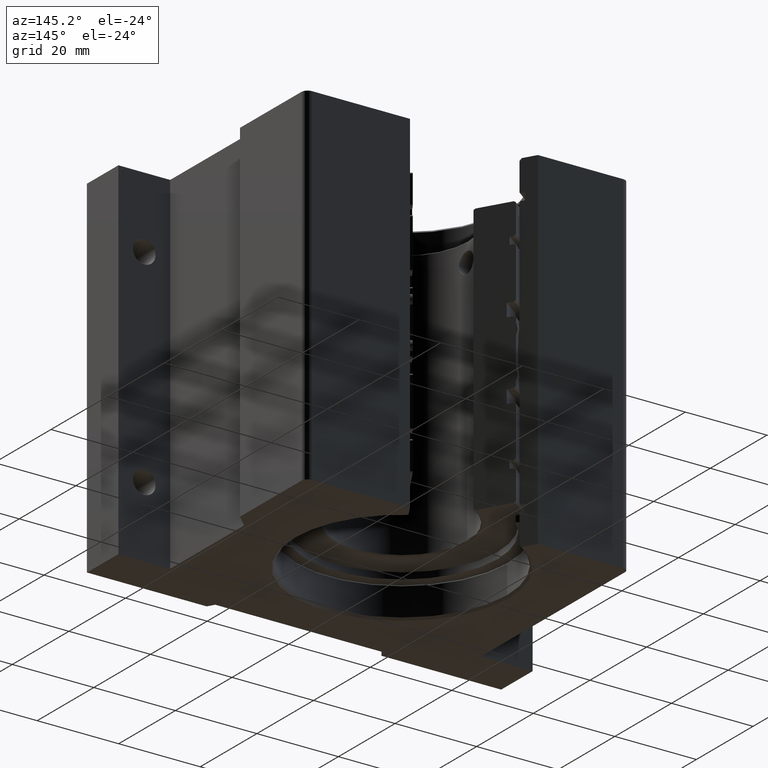
[diagram: clean part render]
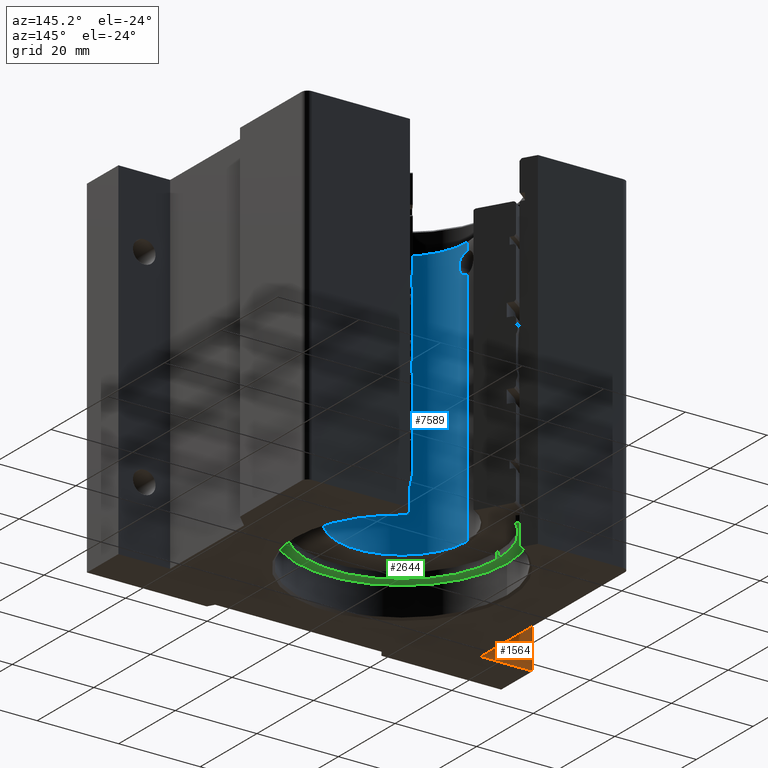
[diagram: same view with three faces highlighted in distinct colors, each labeled with its STEP entity id]
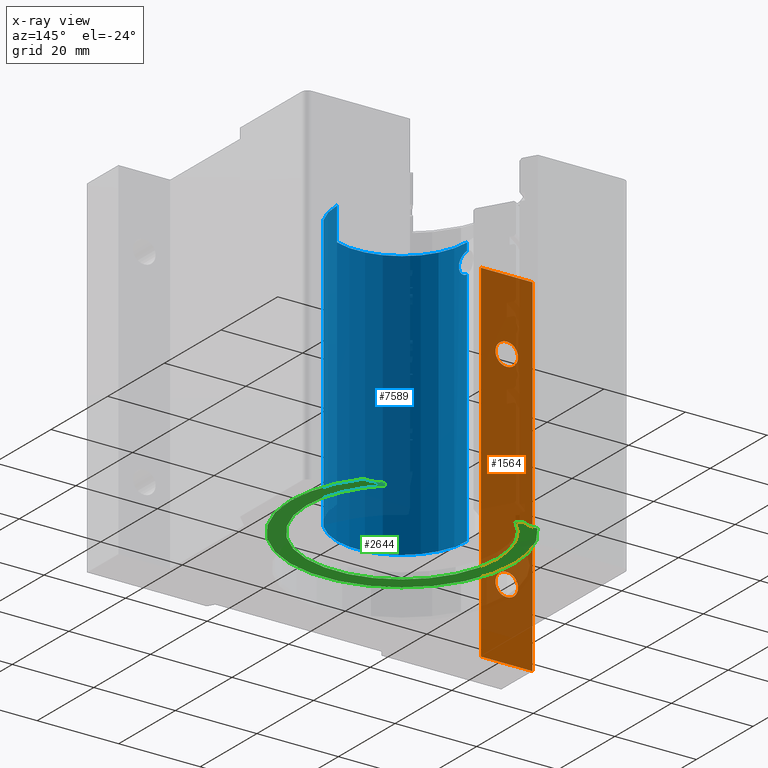
[diagram: x-ray of the same camera — body ghosted, the three highlighted faces saturated]
A machine part, auxiliary view with three faces highlighted in distinct colors.
The next image is the same camera in x-ray (body ghosted, the three faces saturated) — at least one of them is partly hidden behind the body in this view.
Their STEP definitions:

[orange] entity #1564 — the highlighted planar face has unit normal (0, 1, 0).
#36 = VERTEX_POINT ( 'NONE', #2138 ) ;
#144 = CARTESIAN_POINT ( 'NONE',  ( 0.000000000000000000, -1.062999999999999945, -2.364883938398306462 ) ) ;
#180 = VECTOR ( 'NONE', #2681, 39.37007874015748143 ) ;
#297 = DIRECTION ( 'NONE',  ( 0.000000000000000000, 1.000000000000000000, -0.000000000000000000 ) ) ;
#397 = ORIENTED_EDGE ( 'NONE', *, *, #3047, .F. ) ;
#452 = CARTESIAN_POINT ( 'NONE',  ( 0.000000000000000000, -1.062999999999999945, 1.687500000000000000 ) ) ;
#805 = DIRECTION ( 'NONE',  ( 0.000000000000000000, 0.000000000000000000, 1.000000000000000000 ) ) ;
#936 = CARTESIAN_POINT ( 'NONE',  ( -1.750000000000000000, -1.062999999999999945, 0.8906250000000000000 ) ) ;
#1316 = DIRECTION ( 'NONE',  ( 0.000000000000000000, 1.000000000000000000, -0.000000000000000000 ) ) ;
#1327 = CARTESIAN_POINT ( 'NONE',  ( -1.750000000000000000, -1.062999999999999945, -1.109374999999999778 ) ) ;
#1418 = AXIS2_PLACEMENT_3D ( 'NONE', #10109, #7575, #805 ) ;
#1564 = ADVANCED_FACE ( 'NONE', ( #9957, #2382, #5758 ), #4068, .T. ) ;
#1614 = VERTEX_POINT ( 'NONE', #2655 ) ;
#1756 = EDGE_CURVE ( 'NONE', #36, #9228, #10079, .T. ) ;
#1770 = VERTEX_POINT ( 'NONE', #8283 ) ;
#1957 = VECTOR ( 'NONE', #9687, 39.37007874015748143 ) ;
#2138 = CARTESIAN_POINT ( 'NONE',  ( -1.750000000000000000, -1.062999999999999945, 1.109375000000000222 ) ) ;
#2382 = FACE_BOUND ( 'NONE', #6055, .T. ) ;
#2655 = CARTESIAN_POINT ( 'NONE',  ( -1.499999999999999778, -1.062999999999999945, 1.687500000000000000 ) ) ;
#2659 = AXIS2_PLACEMENT_3D ( 'NONE', #144, #297, #6931 ) ;
#2681 = DIRECTION ( 'NONE',  ( 0.000000000000000000, 0.000000000000000000, 1.000000000000000000 ) ) ;
#2723 = EDGE_CURVE ( 'NONE', #1614, #8158, #2946, .T. ) ;
#2808 = EDGE_CURVE ( 'NONE', #9620, #8158, #4436, .T. ) ;
#2946 = LINE ( 'NONE', #452, #1957 ) ;
#3047 = EDGE_CURVE ( 'NONE', #1770, #1614, #7657, .T. ) ;
#3068 = DIRECTION ( 'NONE',  ( 0.000000000000000000, 0.000000000000000000, 1.000000000000000000 ) ) ;
#3083 = CARTESIAN_POINT ( 'NONE',  ( -2.000000000000000000, -1.062999999999999945, -1.687500000000000000 ) ) ;
#3187 = EDGE_LOOP ( 'NONE', ( #7451, #7536, #9960, #397 ) ) ;
#3517 = DIRECTION ( 'NONE',  ( 0.000000000000000000, 0.000000000000000000, 1.000000000000000000 ) ) ;
#3563 = EDGE_CURVE ( 'NONE', #9228, #36, #4264, .T. ) ;
#3864 = DIRECTION ( 'NONE',  ( 1.000000000000000000, 0.000000000000000000, 0.000000000000000000 ) ) ;
#4046 = ORIENTED_EDGE ( 'NONE', *, *, #4586, .F. ) ;
#4068 = PLANE ( 'NONE',  #2659 ) ;
#4204 = AXIS2_PLACEMENT_3D ( 'NONE', #6930, #6200, #3517 ) ;
#4211 = CARTESIAN_POINT ( 'NONE',  ( -1.750000000000000000, -1.062999999999999945, -0.8906249999999997780 ) ) ;
#4264 = CIRCLE ( 'NONE', #5338, 0.1093750000000001110 ) ;
#4436 = LINE ( 'NONE', #7722, #180 ) ;
#4437 = VECTOR ( 'NONE', #6728, 39.37007874015748143 ) ;
#4454 = AXIS2_PLACEMENT_3D ( 'NONE', #8235, #1316, #6427 ) ;
#4586 = EDGE_CURVE ( 'NONE', #6266, #6042, #10665, .T. ) ;
#4611 = CARTESIAN_POINT ( 'NONE',  ( -2.000000000000000000, -1.062999999999999945, 1.687500000000000000 ) ) ;
#5338 = AXIS2_PLACEMENT_3D ( 'NONE', #6574, #10839, #3068 ) ;
#5758 = FACE_OUTER_BOUND ( 'NONE', #3187, .T. ) ;
#6042 = VERTEX_POINT ( 'NONE', #4211 ) ;
#6055 = EDGE_LOOP ( 'NONE', ( #8101, #9446 ) ) ;
#6200 = DIRECTION ( 'NONE',  ( 0.000000000000000000, 1.000000000000000000, -0.000000000000000000 ) ) ;
#6266 = VERTEX_POINT ( 'NONE', #1327 ) ;
#6394 = CARTESIAN_POINT ( 'NONE',  ( 0.000000000000000000, -1.062999999999999945, -1.687500000000000000 ) ) ;
#6427 = DIRECTION ( 'NONE',  ( 0.000000000000000000, 0.000000000000000000, 1.000000000000000000 ) ) ;
#6574 = CARTESIAN_POINT ( 'NONE',  ( -1.750000000000000000, -1.062999999999999945, 1.000000000000000222 ) ) ;
#6620 = CARTESIAN_POINT ( 'NONE',  ( -1.499999999999999778, -1.062999999999999945, -2.364883938398306462 ) ) ;
#6728 = DIRECTION ( 'NONE',  ( 0.000000000000000000, 0.000000000000000000, 1.000000000000000000 ) ) ;
#6930 = CARTESIAN_POINT ( 'NONE',  ( -1.750000000000000000, -1.062999999999999945, -0.9999999999999996669 ) ) ;
#6931 = DIRECTION ( 'NONE',  ( 0.000000000000000000, 0.000000000000000000, 1.000000000000000000 ) ) ;
#7451 = ORIENTED_EDGE ( 'NONE', *, *, #8515, .F. ) ;
#7536 = ORIENTED_EDGE ( 'NONE', *, *, #2808, .T. ) ;
#7575 = DIRECTION ( 'NONE',  ( 0.000000000000000000, 1.000000000000000000, -0.000000000000000000 ) ) ;
#7585 = CIRCLE ( 'NONE', #4204, 0.1093749999999999722 ) ;
#7657 = LINE ( 'NONE', #6620, #4437 ) ;
#7722 = CARTESIAN_POINT ( 'NONE',  ( -2.000000000000000000, -1.062999999999999945, -2.364883938398306462 ) ) ;
#8101 = ORIENTED_EDGE ( 'NONE', *, *, #1756, .F. ) ;
#8158 = VERTEX_POINT ( 'NONE', #4611 ) ;
#8235 = CARTESIAN_POINT ( 'NONE',  ( -1.750000000000000000, -1.062999999999999945, -0.9999999999999996669 ) ) ;
#8283 = CARTESIAN_POINT ( 'NONE',  ( -1.499999999999999778, -1.062999999999999945, -1.687500000000000000 ) ) ;
#8324 = VECTOR ( 'NONE', #3864, 39.37007874015748143 ) ;
#8515 = EDGE_CURVE ( 'NONE', #9620, #1770, #8852, .T. ) ;
#8852 = LINE ( 'NONE', #6394, #8324 ) ;
#9228 = VERTEX_POINT ( 'NONE', #936 ) ;
#9446 = ORIENTED_EDGE ( 'NONE', *, *, #3563, .F. ) ;
#9620 = VERTEX_POINT ( 'NONE', #3083 ) ;
#9687 = DIRECTION ( 'NONE',  ( -1.000000000000000000, 0.000000000000000000, 0.000000000000000000 ) ) ;
#9957 = FACE_BOUND ( 'NONE', #10132, .T. ) ;
#9960 = ORIENTED_EDGE ( 'NONE', *, *, #2723, .F. ) ;
#10079 = CIRCLE ( 'NONE', #1418, 0.1093750000000001110 ) ;
#10097 = ORIENTED_EDGE ( 'NONE', *, *, #10543, .F. ) ;
#10109 = CARTESIAN_POINT ( 'NONE',  ( -1.750000000000000000, -1.062999999999999945, 1.000000000000000222 ) ) ;
#10132 = EDGE_LOOP ( 'NONE', ( #10097, #4046 ) ) ;
#10543 = EDGE_CURVE ( 'NONE', #6042, #6266, #7585, .T. ) ;
#10665 = CIRCLE ( 'NONE', #4454, 0.1093749999999999722 ) ;
#10839 = DIRECTION ( 'NONE',  ( 0.000000000000000000, 1.000000000000000000, -0.000000000000000000 ) ) ;

[blue] entity #7589 — the highlighted cylindrical surface (partial cylindrical patch) has radius 15.9455 mm, axis along (0, 0, 1).
#223 = CARTESIAN_POINT ( 'NONE',  ( -0.6197852279681816956, -0.09984689866293469662, 1.108056495052854640 ) ) ;
#431 = CARTESIAN_POINT ( 'NONE',  ( -0.6277749999999999719, 7.687538823315368892E-17, 1.221749999994027558 ) ) ;
#445 = CARTESIAN_POINT ( 'NONE',  ( -0.6196781287360271229, -0.1005010815425180087, 1.121250000000000080 ) ) ;
#645 = ORIENTED_EDGE ( 'NONE', *, *, #9993, .F. ) ;
#655 = EDGE_CURVE ( 'NONE', #1995, #7795, #3987, .T. ) ;
#904 = CARTESIAN_POINT ( 'NONE',  ( -0.6216994293518919301, -0.08720564659894093629, 1.070864139833425988 ) ) ;
#943 = VERTEX_POINT ( 'NONE', #431 ) ;
#963 = CARTESIAN_POINT ( 'NONE',  ( -0.6232155315254481742, -0.07566752348864054512, 1.054784262779298265 ) ) ;
#983 = CARTESIAN_POINT ( 'NONE',  ( -0.6272682356443877172, -0.02602661722304328365, 1.218542801034656842 ) ) ;
#1043 = CARTESIAN_POINT ( 'NONE',  ( -0.6197850943425496917, -0.09984794927506493445, 1.134465057070370486 ) ) ;
#1104 = AXIS2_PLACEMENT_3D ( 'NONE', #7833, #6072, #3391 ) ;
#1114 = LINE ( 'NONE', #6215, #2333 ) ;
#1146 = CARTESIAN_POINT ( 'NONE',  ( -0.6205026852726490683, -0.09531166773843816054, 1.153791134407431640 ) ) ;
#1337 = CARTESIAN_POINT ( 'NONE',  ( -0.6277749999999999719, 7.688026443347296429E-17, 1.297078597873269068 ) ) ;
#1405 = LINE ( 'NONE', #8902, #7517 ) ;
#1687 = CARTESIAN_POINT ( 'NONE',  ( -0.6277749999999999719, 7.688026443347296429E-17, -1.308478763428706726 ) ) ;
#1738 = CARTESIAN_POINT ( 'NONE',  ( -0.6277749999999999719, -0.006568595483557407647, 1.020749928393636985 ) ) ;
#1744 = DIRECTION ( 'NONE',  ( 1.000000000000000000, 0.000000000000000000, 0.000000000000000000 ) ) ;
#1785 = CARTESIAN_POINT ( 'NONE',  ( -0.6262233239574995780, -0.04452536684252183380, 1.030913454400863571 ) ) ;
#1951 = CIRCLE ( 'NONE', #8134, 0.6277749999999999719 ) ;
#1965 = CARTESIAN_POINT ( 'NONE',  ( -0.6242692549997436169, -0.06641543853985001911, 1.196960791929497336 ) ) ;
#1995 = VERTEX_POINT ( 'NONE', #7447 ) ;
#2194 = ORIENTED_EDGE ( 'NONE', *, *, #6796, .F. ) ;
#2226 = CARTESIAN_POINT ( 'NONE',  ( -0.6277749999999999719, 7.688437041954978655E-17, 1.020750000005972602 ) ) ;
#2333 = VECTOR ( 'NONE', #8724, 39.37007874015748143 ) ;
#2381 = B_SPLINE_CURVE_WITH_KNOTS ( 'NONE', 3,
 ( #7843, #8657, #6197, #983, #5236, #4351, #9529, #2806, #1965, #5346, #8708, #1146, #3513, #1043, #4505, #7888 ),
 .UNSPECIFIED., .F., .F.,
 ( 4, 2, 2, 2, 2, 2, 2, 4 ),
 ( 0.01199118917514273470, 0.01249048223894318708, 0.01298977530274363947, 0.01348906836654409185, 0.01398836143034454423, 0.01498694755794544899, 0.01548624062174589616, 0.01598553368554634507 ),
 .UNSPECIFIED. ) ;
#2470 = DIRECTION ( 'NONE',  ( 0.000000000000000000, 0.000000000000000000, 1.000000000000000000 ) ) ;
#2560 = DIRECTION ( 'NONE',  ( 0.000000000000000000, 1.000000000000000000, 0.000000000000000000 ) ) ;
#2625 = CARTESIAN_POINT ( 'NONE',  ( -0.6212525518819045356, -0.09029529058718183121, 1.076633798975683343 ) ) ;
#2679 = CARTESIAN_POINT ( 'NONE',  ( -0.6257760158784918536, -0.05036129136641616377, 1.034027392434999415 ) ) ;
#2806 = CARTESIAN_POINT ( 'NONE',  ( -0.6248027546438139623, -0.06126210333269425934, 1.201190444413952285 ) ) ;
#3391 = DIRECTION ( 'NONE',  ( 0.000000000000000000, 1.000000000000000000, -4.351635528117977720E-16 ) ) ;
#3490 = CARTESIAN_POINT ( 'NONE',  ( -0.6226794863079635478, -0.07990783807899060065, 1.059945175123825800 ) ) ;
#3513 = CARTESIAN_POINT ( 'NONE',  ( -0.6201975196275443247, -0.09725334334345896170, 1.147442221040098964 ) ) ;
#3987 = LINE ( 'NONE', #1687, #6886 ) ;
#4173 = AXIS2_PLACEMENT_3D ( 'NONE', #9985, #2470, #1744 ) ;
#4274 = CARTESIAN_POINT ( 'NONE',  ( -0.6276719255163627498, -0.01309899393868652236, 1.021387608345956099 ) ) ;
#4350 = VERTEX_POINT ( 'NONE', #1337 ) ;
#4351 = CARTESIAN_POINT ( 'NONE',  ( -0.6262204175595978972, -0.04456989508326104910, 1.211566736452149851 ) ) ;
#4505 = CARTESIAN_POINT ( 'NONE',  ( -0.6196781287360274559, -0.1005010815425180365, 1.127897593180914093 ) ) ;
#4940 = DIRECTION ( 'NONE',  ( 0.000000000000000000, 0.000000000000000000, 1.000000000000000000 ) ) ;
#5236 = CARTESIAN_POINT ( 'NONE',  ( -0.6269667818443872553, -0.03242131058334719873, 1.216604184909557462 ) ) ;
#5275 = CARTESIAN_POINT ( 'NONE',  ( -0.6201924058802263939, -0.09728572181298751620, 1.095193241299162734 ) ) ;
#5335 = EDGE_CURVE ( 'NONE', #943, #4350, #1405, .T. ) ;
#5346 = CARTESIAN_POINT ( 'NONE',  ( -0.6226891917834855850, -0.08028867553106408539, 1.183097491119899702 ) ) ;
#5424 = EDGE_LOOP ( 'NONE', ( #645, #5584, #2194, #10577, #5994, #9596, #6632 ) ) ;
#5584 = ORIENTED_EDGE ( 'NONE', *, *, #655, .T. ) ;
#5956 = CARTESIAN_POINT ( 'NONE',  ( -0.6272665874714412615, -0.02608175541555395743, 1.023967671945548830 ) ) ;
#5994 = ORIENTED_EDGE ( 'NONE', *, *, #5335, .T. ) ;
#6072 = DIRECTION ( 'NONE',  ( 0.000000000000000000, 1.224646799147352961E-16, 1.000000000000000000 ) ) ;
#6174 = CARTESIAN_POINT ( 'NONE',  ( -0.6204973446662808145, -0.09534682996354412743, 1.088802540695859022 ) ) ;
#6197 = CARTESIAN_POINT ( 'NONE',  ( -0.6276698311710415812, -0.01316842018672473129, 1.221099078670992322 ) ) ;
#6215 = CARTESIAN_POINT ( 'NONE',  ( 0.6277749999999999719, 0.000000000000000000, -1.308478763428706726 ) ) ;
#6632 = ORIENTED_EDGE ( 'NONE', *, *, #8998, .F. ) ;
#6635 = CYLINDRICAL_SURFACE ( 'NONE', #4173, 0.6277749999999999719 ) ;
#6796 = EDGE_CURVE ( 'NONE', #9248, #7795, #8130, .T. ) ;
#6807 = FACE_OUTER_BOUND ( 'NONE', #5424, .T. ) ;
#6886 = VECTOR ( 'NONE', #7505, 39.37007874015748143 ) ;
#6958 = CARTESIAN_POINT ( 'NONE',  ( -0.6196781287360273449, -0.1005010815425180365, 1.114596546805898480 ) ) ;
#7316 = CARTESIAN_POINT ( 'NONE',  ( 0.6277749999999999719, -2.669005277261051162E-30, 1.297078597873269068 ) ) ;
#7447 = CARTESIAN_POINT ( 'NONE',  ( -0.6277749999999999719, 7.688026443347296429E-17, -1.297078597873269068 ) ) ;
#7505 = DIRECTION ( 'NONE',  ( 0.000000000000000000, 0.000000000000000000, 1.000000000000000000 ) ) ;
#7517 = VECTOR ( 'NONE', #4940, 39.37007874015748143 ) ;
#7589 = ADVANCED_FACE ( 'NONE', ( #6807 ), #6635, .F. ) ;
#7608 = CARTESIAN_POINT ( 'NONE',  ( -0.6269660437658252095, -0.03243053692848991282, 1.025900990129021029 ) ) ;
#7669 = CARTESIAN_POINT ( 'NONE',  ( -0.6247943732269636286, -0.06135041076290404655, 1.041373884471974876 ) ) ;
#7795 = VERTEX_POINT ( 'NONE', #2226 ) ;
#7833 = CARTESIAN_POINT ( 'NONE',  ( 0.000000000000000000, -1.388370055550489432E-16, -1.297078597873269068 ) ) ;
#7843 = CARTESIAN_POINT ( 'NONE',  ( -0.6277749999999999719, 7.687538823315368892E-17, 1.221749999994027558 ) ) ;
#7888 = CARTESIAN_POINT ( 'NONE',  ( -0.6196781287360271229, -0.1005010815425180087, 1.121250000000000080 ) ) ;
#8130 = B_SPLINE_CURVE_WITH_KNOTS ( 'NONE', 3,
 ( #8580, #6958, #223, #5275, #6174, #2625, #904, #3490, #963, #9349, #7669, #2679, #1785, #7608, #5956, #4274, #1738, #8636 ),
 .UNSPECIFIED., .F., .F.,
 ( 4, 2, 2, 2, 2, 2, 2, 2, 4 ),
 ( 0.000000000000000000, 0.0004997332026385216657, 0.0009994664052770433314, 0.001499199607915564780, 0.001998932810554086663, 0.002498666013192608979, 0.002998399215831130428, 0.003498132418469652311, 0.003997865621108174193 ),
 .UNSPECIFIED. ) ;
#8134 = AXIS2_PLACEMENT_3D ( 'NONE', #8528, #9238, #2560 ) ;
#8343 = CIRCLE ( 'NONE', #1104, 0.6277749999999999719 ) ;
#8528 = CARTESIAN_POINT ( 'NONE',  ( -0.000000000000000000, -1.388370055550489432E-16, 1.297078597873269068 ) ) ;
#8580 = CARTESIAN_POINT ( 'NONE',  ( -0.6196781287360271229, -0.1005010815425180087, 1.121250000000000080 ) ) ;
#8582 = EDGE_CURVE ( 'NONE', #4350, #9563, #1951, .T. ) ;
#8636 = CARTESIAN_POINT ( 'NONE',  ( -0.6277749999999999719, 7.688437041954978655E-17, 1.020750000005972602 ) ) ;
#8657 = CARTESIAN_POINT ( 'NONE',  ( -0.6277750000000000830, -0.006637260289408444987, 1.221750072354963024 ) ) ;
#8708 = CARTESIAN_POINT ( 'NONE',  ( -0.6216286047460998221, -0.08777876529674090433, 1.171910248846572911 ) ) ;
#8724 = DIRECTION ( 'NONE',  ( 0.000000000000000000, 0.000000000000000000, 1.000000000000000000 ) ) ;
#8902 = CARTESIAN_POINT ( 'NONE',  ( -0.6277749999999999719, 7.688026443347296429E-17, -1.308478763428706726 ) ) ;
#8998 = EDGE_CURVE ( 'NONE', #9965, #9563, #1114, .T. ) ;
#9238 = DIRECTION ( 'NONE',  ( 0.000000000000000000, -1.224646799147352961E-16, 1.000000000000000000 ) ) ;
#9248 = VERTEX_POINT ( 'NONE', #445 ) ;
#9349 = CARTESIAN_POINT ( 'NONE',  ( -0.6242703097594733963, -0.06640597260986433326, 1.045530152974640359 ) ) ;
#9463 = CARTESIAN_POINT ( 'NONE',  ( 0.6277749999999999719, -2.669005277261051162E-30, -1.297078597873269068 ) ) ;
#9529 = CARTESIAN_POINT ( 'NONE',  ( -0.6257776843378809462, -0.05033703705983262611, 1.208483474090538801 ) ) ;
#9563 = VERTEX_POINT ( 'NONE', #7316 ) ;
#9596 = ORIENTED_EDGE ( 'NONE', *, *, #8582, .T. ) ;
#9704 = EDGE_CURVE ( 'NONE', #943, #9248, #2381, .T. ) ;
#9965 = VERTEX_POINT ( 'NONE', #9463 ) ;
#9985 = CARTESIAN_POINT ( 'NONE',  ( 0.000000000000000000, 0.000000000000000000, -1.308478763428706726 ) ) ;
#9993 = EDGE_CURVE ( 'NONE', #1995, #9965, #8343, .T. ) ;
#10577 = ORIENTED_EDGE ( 'NONE', *, *, #9704, .F. ) ;

[green] entity #2644 — the highlighted planar face has unit normal (0, 0, -1).
#178 = DIRECTION ( 'NONE',  ( 0.000000000000000000, 0.000000000000000000, -1.000000000000000000 ) ) ;
#251 = DIRECTION ( 'NONE',  ( 0.000000000000000000, 0.000000000000000000, -1.000000000000000000 ) ) ;
#293 = CARTESIAN_POINT ( 'NONE',  ( 0.7064683836309321174, 0.6950806990794631268, -1.378249999999999753 ) ) ;
#365 = CIRCLE ( 'NONE', #8163, 0.1799999999999999933 ) ;
#678 = DIRECTION ( 'NONE',  ( 0.000000000000000000, 0.000000000000000000, -1.000000000000000000 ) ) ;
#748 = AXIS2_PLACEMENT_3D ( 'NONE', #6090, #7179, #3459 ) ;
#1021 = EDGE_CURVE ( 'NONE', #7951, #8943, #6159, .T. ) ;
#1068 = VERTEX_POINT ( 'NONE', #4933 ) ;
#1198 = CARTESIAN_POINT ( 'NONE',  ( -0.7982225841476654482, 0.8499392367437942353, -1.378249999999999975 ) ) ;
#1229 = EDGE_CURVE ( 'NONE', #5976, #5676, #10454, .T. ) ;
#1471 = CARTESIAN_POINT ( 'NONE',  ( -1.076999999999999957, 6.099678591594160690E-16, -1.378249999999999753 ) ) ;
#1505 = DIRECTION ( 'NONE',  ( 0.000000000000000000, 0.000000000000000000, -1.000000000000000000 ) ) ;
#1512 = CARTESIAN_POINT ( 'NONE',  ( 0.000000000000000000, 4.780733988912460139E-16, -1.378249999999999753 ) ) ;
#1778 = DIRECTION ( 'NONE',  ( -1.000000000000000000, 0.000000000000000000, 0.000000000000000000 ) ) ;
#1794 = ORIENTED_EDGE ( 'NONE', *, *, #7191, .T. ) ;
#1856 = CARTESIAN_POINT ( 'NONE',  ( 0.000000000000000000, 4.780733988912460139E-16, -1.378249999999999753 ) ) ;
#1865 = DIRECTION ( 'NONE',  ( 0.000000000000000000, -0.000000000000000000, 1.000000000000000000 ) ) ;
#1947 = AXIS2_PLACEMENT_3D ( 'NONE', #7599, #10137, #5998 ) ;
#1997 = VERTEX_POINT ( 'NONE', #9137 ) ;
#2006 = CARTESIAN_POINT ( 'NONE',  ( 0.000000000000000000, 4.780733988912460139E-16, -1.378249999999999753 ) ) ;
#2091 = CIRCLE ( 'NONE', #3330, 1.076999999999999957 ) ;
#2245 = LINE ( 'NONE', #5504, #9864 ) ;
#2644 = ADVANCED_FACE ( 'NONE', ( #4453 ), #10507, .T. ) ;
#3106 = EDGE_CURVE ( 'NONE', #5676, #7951, #3263, .T. ) ;
#3118 = ORIENTED_EDGE ( 'NONE', *, *, #1021, .T. ) ;
#3214 = CIRCLE ( 'NONE', #9743, 0.05000000000000000971 ) ;
#3263 = LINE ( 'NONE', #7603, #8492 ) ;
#3330 = AXIS2_PLACEMENT_3D ( 'NONE', #2006, #10502, #8903 ) ;
#3362 = EDGE_CURVE ( 'NONE', #6161, #4812, #365, .T. ) ;
#3459 = DIRECTION ( 'NONE',  ( -1.000000000000000000, 0.000000000000000000, 0.000000000000000000 ) ) ;
#3621 = CIRCLE ( 'NONE', #5579, 1.076999999999999957 ) ;
#3938 = ORIENTED_EDGE ( 'NONE', *, *, #10847, .T. ) ;
#3988 = CARTESIAN_POINT ( 'NONE',  ( 0.000000000000000000, 4.780733988912460139E-16, -1.378249999999999753 ) ) ;
#4277 = CIRCLE ( 'NONE', #748, 0.9210000000000000409 ) ;
#4309 = CARTESIAN_POINT ( 'NONE',  ( 0.6305000000000000604, 0.6713499460043181877, -1.378249999999999753 ) ) ;
#4453 = FACE_OUTER_BOUND ( 'NONE', #4929, .T. ) ;
#4468 = DIRECTION ( 'NONE',  ( -1.000000000000000000, 0.000000000000000000, 0.000000000000000000 ) ) ;
#4494 = CARTESIAN_POINT ( 'NONE',  ( 0.9210000000000000409, 4.780733988912460139E-16, -1.378249999999999753 ) ) ;
#4520 = CARTESIAN_POINT ( 'NONE',  ( 0.000000000000000000, 4.780733988912460139E-16, -1.378249999999999753 ) ) ;
#4757 = EDGE_CURVE ( 'NONE', #1068, #5976, #10138, .T. ) ;
#4812 = VERTEX_POINT ( 'NONE', #293 ) ;
#4820 = DIRECTION ( 'NONE',  ( -1.000000000000000000, 0.000000000000000000, 0.000000000000000000 ) ) ;
#4929 = EDGE_LOOP ( 'NONE', ( #5193, #8512, #7317, #3118, #8707, #7257, #9891, #8681, #7842, #3938, #1794, #6491 ) ) ;
#4933 = CARTESIAN_POINT ( 'NONE',  ( -0.8394499584700554351, 0.6747242156797269574, -1.378249999999999753 ) ) ;
#4997 = DIRECTION ( 'NONE',  ( 0.000000000000000000, -0.000000000000000000, 1.000000000000000000 ) ) ;
#5035 = CARTESIAN_POINT ( 'NONE',  ( -0.9210000000000000409, 5.908633690927173520E-16, -1.378249999999999753 ) ) ;
#5091 = CARTESIAN_POINT ( 'NONE',  ( 0.8394499584700554351, 0.6747242156797269574, -1.378249999999999753 ) ) ;
#5193 = ORIENTED_EDGE ( 'NONE', *, *, #4757, .T. ) ;
#5432 = CIRCLE ( 'NONE', #8774, 0.9210000000000000409 ) ;
#5504 = CARTESIAN_POINT ( 'NONE',  ( 0.7372947882736156089, 0.7850639433731275707, -1.378249999999999753 ) ) ;
#5579 = AXIS2_PLACEMENT_3D ( 'NONE', #4520, #251, #4468 ) ;
#5591 = DIRECTION ( 'NONE',  ( 0.000000000000000000, -0.000000000000000000, 1.000000000000000000 ) ) ;
#5676 = VERTEX_POINT ( 'NONE', #7087 ) ;
#5710 = CARTESIAN_POINT ( 'NONE',  ( 0.7982225841476654482, 0.8499392367437942353, -1.378249999999999975 ) ) ;
#5930 = VERTEX_POINT ( 'NONE', #1471 ) ;
#5976 = VERTEX_POINT ( 'NONE', #9857 ) ;
#5998 = DIRECTION ( 'NONE',  ( -1.000000000000000000, 0.000000000000000000, 0.000000000000000000 ) ) ;
#6090 = CARTESIAN_POINT ( 'NONE',  ( 0.000000000000000000, 4.780733988912460139E-16, -1.378249999999999753 ) ) ;
#6159 = CIRCLE ( 'NONE', #7227, 0.9210000000000000409 ) ;
#6161 = VERTEX_POINT ( 'NONE', #5091 ) ;
#6223 = DIRECTION ( 'NONE',  ( 0.000000000000000000, 0.000000000000000000, -1.000000000000000000 ) ) ;
#6472 = DIRECTION ( 'NONE',  ( 0.6845819761129210423, 0.7289358805692912613, -1.618562796166881084E-16 ) ) ;
#6491 = ORIENTED_EDGE ( 'NONE', *, *, #6722, .T. ) ;
#6672 = DIRECTION ( 'NONE',  ( 0.6845819761129210423, -0.7289358805692912613, 1.618562796166881084E-16 ) ) ;
#6722 = EDGE_CURVE ( 'NONE', #5930, #1068, #7733, .T. ) ;
#7087 = CARTESIAN_POINT ( 'NONE',  ( -0.6445343116811527162, 0.6862935374227948637, -1.378249999999999753 ) ) ;
#7140 = VERTEX_POINT ( 'NONE', #4309 ) ;
#7179 = DIRECTION ( 'NONE',  ( 0.000000000000000000, -0.000000000000000000, 1.000000000000000000 ) ) ;
#7191 = EDGE_CURVE ( 'NONE', #7330, #5930, #3621, .T. ) ;
#7214 = CARTESIAN_POINT ( 'NONE',  ( 0.6809811057096173403, 0.6520644386171489115, -1.378249999999999753 ) ) ;
#7227 = AXIS2_PLACEMENT_3D ( 'NONE', #1512, #5591, #4820 ) ;
#7257 = ORIENTED_EDGE ( 'NONE', *, *, #7872, .T. ) ;
#7317 = ORIENTED_EDGE ( 'NONE', *, *, #3106, .T. ) ;
#7330 = VERTEX_POINT ( 'NONE', #10797 ) ;
#7599 = CARTESIAN_POINT ( 'NONE',  ( -0.6809811057096173403, 0.6520644386171489115, -1.378249999999999753 ) ) ;
#7603 = CARTESIAN_POINT ( 'NONE',  ( -0.7372947882736156089, 0.7850639433731275707, -1.378249999999999753 ) ) ;
#7604 = CARTESIAN_POINT ( 'NONE',  ( 0.000000000000000000, 4.780733988912460139E-16, -1.378249999999999753 ) ) ;
#7733 = CIRCLE ( 'NONE', #8593, 1.076999999999999957 ) ;
#7842 = ORIENTED_EDGE ( 'NONE', *, *, #3362, .F. ) ;
#7872 = EDGE_CURVE ( 'NONE', #10812, #7140, #5432, .T. ) ;
#7937 = DIRECTION ( 'NONE',  ( -1.000000000000000000, 0.000000000000000000, 0.000000000000000000 ) ) ;
#7951 = VERTEX_POINT ( 'NONE', #8527 ) ;
#8163 = AXIS2_PLACEMENT_3D ( 'NONE', #5710, #1505, #9958 ) ;
#8492 = VECTOR ( 'NONE', #6672, 39.37007874015748143 ) ;
#8512 = ORIENTED_EDGE ( 'NONE', *, *, #1229, .T. ) ;
#8527 = CARTESIAN_POINT ( 'NONE',  ( -0.6305000000000000604, 0.6713499460043181877, -1.378249999999999753 ) ) ;
#8593 = AXIS2_PLACEMENT_3D ( 'NONE', #3988, #678, #10090 ) ;
#8681 = ORIENTED_EDGE ( 'NONE', *, *, #9343, .T. ) ;
#8707 = ORIENTED_EDGE ( 'NONE', *, *, #9243, .T. ) ;
#8774 = AXIS2_PLACEMENT_3D ( 'NONE', #7604, #4997, #1778 ) ;
#8903 = DIRECTION ( 'NONE',  ( -1.000000000000000000, 0.000000000000000000, 0.000000000000000000 ) ) ;
#8943 = VERTEX_POINT ( 'NONE', #5035 ) ;
#9137 = CARTESIAN_POINT ( 'NONE',  ( 0.6445343116811527162, 0.6862935374227948637, -1.378249999999999753 ) ) ;
#9243 = EDGE_CURVE ( 'NONE', #8943, #10812, #4277, .T. ) ;
#9343 = EDGE_CURVE ( 'NONE', #1997, #4812, #3214, .T. ) ;
#9632 = DIRECTION ( 'NONE',  ( -1.000000000000000000, 0.000000000000000000, 0.000000000000000000 ) ) ;
#9743 = AXIS2_PLACEMENT_3D ( 'NONE', #7214, #6223, #10644 ) ;
#9857 = CARTESIAN_POINT ( 'NONE',  ( -0.7064683836309321174, 0.6950806990794631268, -1.378249999999999753 ) ) ;
#9864 = VECTOR ( 'NONE', #6472, 39.37007874015748143 ) ;
#9891 = ORIENTED_EDGE ( 'NONE', *, *, #10605, .T. ) ;
#9958 = DIRECTION ( 'NONE',  ( 1.000000000000000000, 0.000000000000000000, 0.000000000000000000 ) ) ;
#10090 = DIRECTION ( 'NONE',  ( -1.000000000000000000, 0.000000000000000000, 0.000000000000000000 ) ) ;
#10137 = DIRECTION ( 'NONE',  ( 0.000000000000000000, 0.000000000000000000, -1.000000000000000000 ) ) ;
#10138 = CIRCLE ( 'NONE', #10508, 0.1799999999999999933 ) ;
#10454 = CIRCLE ( 'NONE', #1947, 0.05000000000000000971 ) ;
#10502 = DIRECTION ( 'NONE',  ( 0.000000000000000000, 0.000000000000000000, -1.000000000000000000 ) ) ;
#10507 = PLANE ( 'NONE',  #10661 ) ;
#10508 = AXIS2_PLACEMENT_3D ( 'NONE', #1198, #1865, #7937 ) ;
#10605 = EDGE_CURVE ( 'NONE', #7140, #1997, #2245, .T. ) ;
#10644 = DIRECTION ( 'NONE',  ( -1.000000000000000000, 0.000000000000000000, 0.000000000000000000 ) ) ;
#10661 = AXIS2_PLACEMENT_3D ( 'NONE', #1856, #178, #9632 ) ;
#10797 = CARTESIAN_POINT ( 'NONE',  ( 1.076999999999999957, 4.780733988912460139E-16, -1.378249999999999753 ) ) ;
#10812 = VERTEX_POINT ( 'NONE', #4494 ) ;
#10847 = EDGE_CURVE ( 'NONE', #6161, #7330, #2091, .T. ) ;